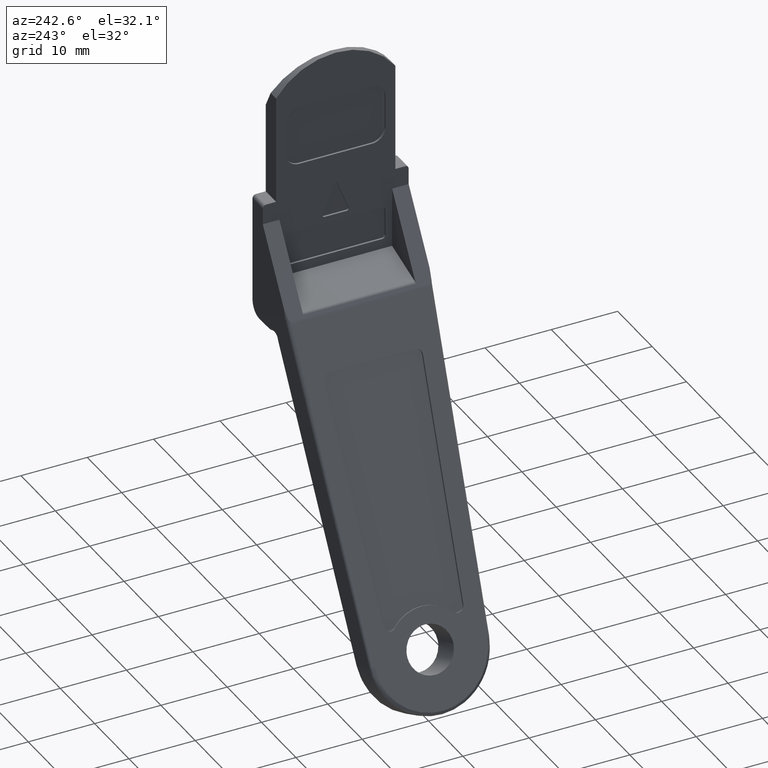
[diagram: clean part render]
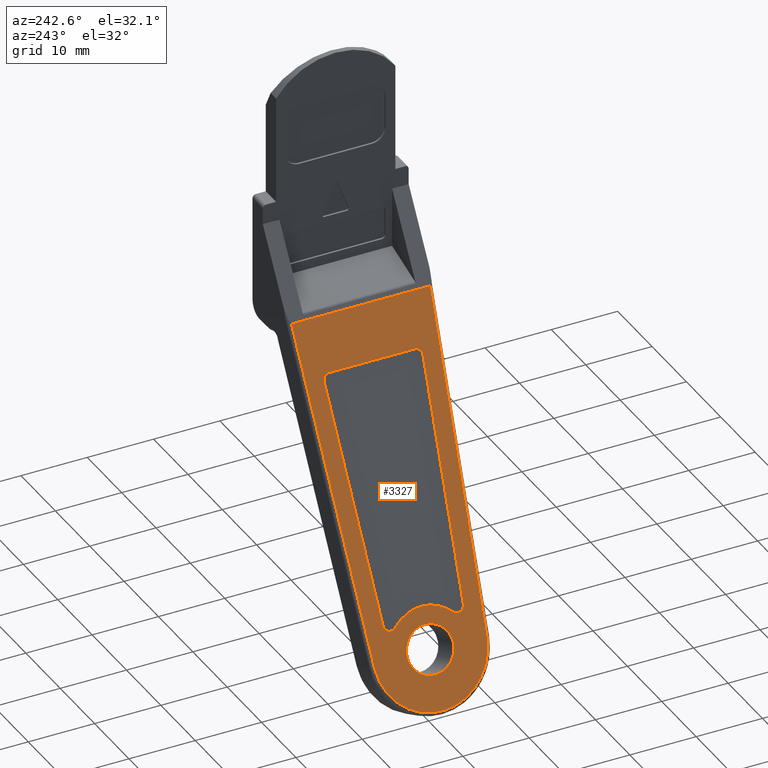
[diagram: same view with one face highlighted and labeled with its STEP entity id]
A machine part, auxiliary view. The second image highlights one B-rep face of the part: STEP entity #3327.
In plain terms, the highlighted face is a freeform B-spline surface patch.
Its self-contained STEP definition (entity closure, byte-faithful):
#62=CARTESIAN_POINT('',(-30.288373101777442,3.472931748367618,-67.683323056339034));
#63=VERTEX_POINT('',#62);
#64=CARTESIAN_POINT('',(-28.992814862727649,0.0,-64.904989406786413));
#65=VERTEX_POINT('',#64);
#66=CARTESIAN_POINT('',(-30.288373101777438,3.472931748367617,-67.683323056339034));
#67=CARTESIAN_POINT('',(-28.992814862727652,3.089445100213793,-64.904989406786413));
#68=CARTESIAN_POINT('',(-28.992814862727649,0.0,-64.904989406786413));
#76=(BOUNDED_CURVE()B_SPLINE_CURVE(2,(#66,#67,#68),.UNSPECIFIED.,.F.,.U.)B_SPLINE_CURVE_WITH_KNOTS((3,3),(0.771473928987601,1.0),.UNSPECIFIED.)CURVE()GEOMETRIC_REPRESENTATION_ITEM()RATIONAL_B_SPLINE_CURVE((0.954005430241922,0.732265053913548,1.0))REPRESENTATION_ITEM(''));
#77=EDGE_CURVE('',#63,#65,#76,.T.);
#118=CARTESIAN_POINT('',(-30.484886737768800,-3.499866730721168,-68.104747914762385));
#119=VERTEX_POINT('',#118);
#125=CARTESIAN_POINT('',(-28.992814862727649,0.0,-64.904989406786413));
#126=CARTESIAN_POINT('',(-28.992814862727649,-3.500000000000000,-64.904989406786413));
#127=CARTESIAN_POINT('',(-30.471978761333549,-3.500000000000000,-68.077066669568794));
#128=CARTESIAN_POINT('',(-30.478432872510666,-3.500000000000000,-68.090907555853050));
#129=CARTESIAN_POINT('',(-30.484886737768804,-3.499866730721168,-68.104747914762385));
#137=(BOUNDED_CURVE()B_SPLINE_CURVE(2,(#125,#126,#127,#128,#129),.UNSPECIFIED.,.F.,.U.)B_SPLINE_CURVE_WITH_KNOTS((3,2,3),(0.0,0.250000000000000,0.251539894374564),.UNSPECIFIED.)CURVE()GEOMETRIC_REPRESENTATION_ITEM()RATIONAL_B_SPLINE_CURVE((1.0,0.707106781186547,1.0,0.998195901520004,0.996414028008813))REPRESENTATION_ITEM(''));
#138=EDGE_CURVE('',#65,#119,#137,.T.);
#165=CARTESIAN_POINT('',(-31.951142659939450,0.0,-71.249143932351188));
#166=VERTEX_POINT('',#165);
#167=CARTESIAN_POINT('',(-31.951142659939450,0.0,-71.249143932351188));
#168=CARTESIAN_POINT('',(-31.951142659939453,3.500000000000000,-71.249143932351188));
#169=CARTESIAN_POINT('',(-30.471978761333549,3.500000000000000,-68.077066669568794));
#170=CARTESIAN_POINT('',(-30.379819561746341,3.500000000000000,-67.879430625420923));
#171=CARTESIAN_POINT('',(-30.288373101777434,3.472931748367618,-67.683323056339034));
#179=(BOUNDED_CURVE()B_SPLINE_CURVE(2,(#167,#168,#169,#170,#171),.UNSPECIFIED.,.F.,.U.)B_SPLINE_CURVE_WITH_KNOTS((3,2,3),(0.500000000000000,0.750000000000000,0.771473928987602),.UNSPECIFIED.)CURVE()GEOMETRIC_REPRESENTATION_ITEM()RATIONAL_B_SPLINE_CURVE((1.0,0.707106781186547,1.0,0.974841727272999,0.954005430241920))REPRESENTATION_ITEM(''));
#180=EDGE_CURVE('',#166,#63,#179,.T.);
#182=CARTESIAN_POINT('',(-30.484886737768807,-3.499866730721168,-68.104747914762385));
#183=CARTESIAN_POINT('',(-31.951142659939457,-3.469589236302817,-71.249143932351203));
#184=CARTESIAN_POINT('',(-31.951142659939450,0.0,-71.249143932351188));
#192=(BOUNDED_CURVE()B_SPLINE_CURVE(2,(#182,#183,#184),.UNSPECIFIED.,.F.,.U.)B_SPLINE_CURVE_WITH_KNOTS((3,3),(0.251539894374564,0.500000000000000),.UNSPECIFIED.)CURVE()GEOMETRIC_REPRESENTATION_ITEM()RATIONAL_B_SPLINE_CURVE((0.996414028008813,0.708910879666543,1.0))REPRESENTATION_ITEM(''));
#193=EDGE_CURVE('',#119,#166,#192,.T.);
#1164=CARTESIAN_POINT('',(-30.619280410718499,8.492850882010821,-68.392956080623406));
#1165=VERTEX_POINT('',#1164);
#1179=CARTESIAN_POINT('',(-10.302602000000000,10.465774658667600,-24.823697999999901));
#1180=VERTEX_POINT('',#1179);
#1181=CARTESIAN_POINT('',(-10.302602000000000,10.465774658667600,-24.823697999999901));
#1182=CARTESIAN_POINT('',(-30.619280410718499,8.492850882010821,-68.392956080623406));
#1183=QUASI_UNIFORM_CURVE('',1,(#1181,#1182),.UNSPECIFIED.,.F.,.U.);
#1184=EDGE_CURVE('',#1180,#1165,#1183,.T.);
#1236=CARTESIAN_POINT('',(-30.619280410038549,-8.492850882076851,-68.392956079165302));
#1237=VERTEX_POINT('',#1236);
#1251=CARTESIAN_POINT('',(-30.619280410718488,8.492850882010824,-68.392956080623406));
#1252=CARTESIAN_POINT('',(-34.064233943988839,8.158316337059119,-75.780682879883386));
#1253=CARTESIAN_POINT('',(-34.064233943662273,-8.050983E-010,-75.780682879183061));
#1254=CARTESIAN_POINT('',(-34.064233943335701,-8.158316338669316,-75.780682878482722));
#1255=CARTESIAN_POINT('',(-30.619280410038570,-8.492850882076851,-68.392956079165302));
#1263=(BOUNDED_CURVE()B_SPLINE_CURVE(2,(#1251,#1252,#1253,#1254,#1255),.UNSPECIFIED.,.F.,.U.)B_SPLINE_CURVE_WITH_KNOTS((3,2,3),(0.0,0.500000000000000,1.0),.UNSPECIFIED.)CURVE()GEOMETRIC_REPRESENTATION_ITEM()RATIONAL_B_SPLINE_CURVE((1.0,0.721458710216014,1.0,0.721458710216014,1.0))REPRESENTATION_ITEM(''));
#1264=EDGE_CURVE('',#1165,#1237,#1263,.T.);
#1335=CARTESIAN_POINT('',(-10.302602000000000,-10.465774658198541,-24.823697999999901));
#1336=VERTEX_POINT('',#1335);
#1344=CARTESIAN_POINT('',(-30.619280410038549,-8.492850882076851,-68.392956079165302));
#1345=CARTESIAN_POINT('',(-10.302602000000000,-10.465774658198541,-24.823697999999901));
#1346=QUASI_UNIFORM_CURVE('',1,(#1344,#1345),.UNSPECIFIED.,.F.,.U.);
#1347=EDGE_CURVE('',#1237,#1336,#1346,.T.);
#1481=CARTESIAN_POINT('',(-14.007196397664440,-7.453796040319440,-32.768226437813752));
#1482=VERTEX_POINT('',#1481);
#1483=CARTESIAN_POINT('',(-13.567248342203021,-6.454637117253899,-31.824755164555398));
#1484=VERTEX_POINT('',#1483);
#1485=CARTESIAN_POINT('',(-14.007196397664440,-7.453796040319440,-32.768226437813752));
#1486=CARTESIAN_POINT('',(-13.827194560662466,-7.471275792570899,-32.382211637025314));
#1487=CARTESIAN_POINT('',(-13.697221451432720,-7.176095863217485,-32.103483400790388));
#1488=CARTESIAN_POINT('',(-13.567248342202982,-6.880915933864070,-31.824755164555462));
#1489=CARTESIAN_POINT('',(-13.567248342202980,-6.454637117253899,-31.824755164555459));
#1497=(BOUNDED_CURVE()B_SPLINE_CURVE(2,(#1485,#1486,#1487,#1488,#1489),.UNSPECIFIED.,.F.,.U.)B_SPLINE_CURVE_WITH_KNOTS((3,2,3),(0.0,0.500000000000000,1.0),.UNSPECIFIED.)CURVE()GEOMETRIC_REPRESENTATION_ITEM()RATIONAL_B_SPLINE_CURVE((1.0,0.919906902772662,1.0,0.919906902772662,1.0))REPRESENTATION_ITEM(''));
#1498=EDGE_CURVE('',#1482,#1484,#1497,.T.);
#1519=CARTESIAN_POINT('',(-28.441975105743300,-6.052055172494590,-63.723710108762290));
#1520=VERTEX_POINT('',#1519);
#1521=CARTESIAN_POINT('',(-28.441975105743300,-6.052055172494590,-63.723710108762290));
#1522=CARTESIAN_POINT('',(-14.007196397664440,-7.453796040319440,-32.768226437813752));
#1523=QUASI_UNIFORM_CURVE('',1,(#1521,#1522),.UNSPECIFIED.,.F.,.U.);
#1524=EDGE_CURVE('',#1520,#1482,#1523,.T.);
#1554=CARTESIAN_POINT('',(-28.717121658875751,-4.331053924448885,-64.313763804601706));
#1555=VERTEX_POINT('',#1554);
#1556=CARTESIAN_POINT('',(-28.717121658875939,-4.331053924448902,-64.313763804601592));
#1557=CARTESIAN_POINT('',(-28.918764757641306,-4.788494815645153,-64.746188831600591));
#1558=CARTESIAN_POINT('',(-28.819924995500319,-5.406723000096585,-64.534226274617055));
#1559=CARTESIAN_POINT('',(-28.721085233359332,-6.024951184548018,-64.322263717633518));
#1560=CARTESIAN_POINT('',(-28.441975105743431,-6.052055172494589,-63.723710108762241));
#1568=(BOUNDED_CURVE()B_SPLINE_CURVE(2,(#1556,#1557,#1558,#1559,#1560),.UNSPECIFIED.,.F.,.U.)B_SPLINE_CURVE_WITH_KNOTS((3,2,3),(0.0,0.500000000000000,1.0),.UNSPECIFIED.)CURVE()GEOMETRIC_REPRESENTATION_ITEM()RATIONAL_B_SPLINE_CURVE((1.0,0.834230755395178,1.0,0.834230755395178,1.0))REPRESENTATION_ITEM(''));
#1569=EDGE_CURVE('',#1555,#1520,#1568,.T.);
#1595=CARTESIAN_POINT('',(-28.717121658875751,4.331053924448885,-64.313763804601706));
#1596=VERTEX_POINT('',#1595);
#1597=CARTESIAN_POINT('',(-28.717121658875740,-4.331053924448900,-64.313763804601692));
#1598=CARTESIAN_POINT('',(-27.936269071517334,-2.559637468139943,-62.639220003012916));
#1599=CARTESIAN_POINT('',(-27.936269071517341,0.0,-62.639220003012923));
#1600=CARTESIAN_POINT('',(-27.936269071517334,2.559637468139941,-62.639220003012916));
#1601=CARTESIAN_POINT('',(-28.717121658875740,4.331053924448899,-64.313763804601692));
#1609=(BOUNDED_CURVE()B_SPLINE_CURVE(2,(#1597,#1598,#1599,#1600,#1601),.UNSPECIFIED.,.F.,.U.)B_SPLINE_CURVE_WITH_KNOTS((3,2,3),(0.0,0.500000000000000,1.0),.UNSPECIFIED.)CURVE()GEOMETRIC_REPRESENTATION_ITEM()RATIONAL_B_SPLINE_CURVE((1.0,0.919798227409188,1.0,0.919798227409188,1.0))REPRESENTATION_ITEM(''));
#1610=EDGE_CURVE('',#1555,#1596,#1609,.T.);
#1640=CARTESIAN_POINT('',(-28.441975105743300,6.052055172494600,-63.723710108762290));
#1641=VERTEX_POINT('',#1640);
#1642=CARTESIAN_POINT('',(-28.441975105743431,6.052055172494589,-63.723710108762241));
#1643=CARTESIAN_POINT('',(-28.721085233359332,6.024951184548018,-64.322263717633518));
#1644=CARTESIAN_POINT('',(-28.819924995500319,5.406723000096586,-64.534226274617055));
#1645=CARTESIAN_POINT('',(-28.918764757641306,4.788494815645154,-64.746188831600591));
#1646=CARTESIAN_POINT('',(-28.717121658875939,4.331053924448902,-64.313763804601592));
#1654=(BOUNDED_CURVE()B_SPLINE_CURVE(2,(#1642,#1643,#1644,#1645,#1646),.UNSPECIFIED.,.F.,.U.)B_SPLINE_CURVE_WITH_KNOTS((3,2,3),(0.0,0.500000000000000,1.0),.UNSPECIFIED.)CURVE()GEOMETRIC_REPRESENTATION_ITEM()RATIONAL_B_SPLINE_CURVE((1.0,0.834230755395178,1.0,0.834230755395178,1.0))REPRESENTATION_ITEM(''));
#1655=EDGE_CURVE('',#1641,#1596,#1654,.T.);
#1672=CARTESIAN_POINT('',(-14.007196204666400,7.453796043337540,-32.768226413850698));
#1673=VERTEX_POINT('',#1672);
#1674=CARTESIAN_POINT('',(-14.007196204666400,7.453796043337540,-32.768226413850698));
#1675=CARTESIAN_POINT('',(-28.441975105743300,6.052055172494600,-63.723710108762290));
#1676=QUASI_UNIFORM_CURVE('',1,(#1674,#1675),.UNSPECIFIED.,.F.,.U.);
#1677=EDGE_CURVE('',#1673,#1641,#1676,.T.);
#1703=CARTESIAN_POINT('',(-13.567248342203021,6.454637116033299,-31.824755164555398));
#1704=VERTEX_POINT('',#1703);
#1705=CARTESIAN_POINT('',(-13.567248342202980,6.454637116033299,-31.824755164555459));
#1706=CARTESIAN_POINT('',(-13.567248342202975,6.880915902105231,-31.824755164555462));
#1707=CARTESIAN_POINT('',(-13.697221435673979,7.176095826207451,-32.103483366995661));
#1708=CARTESIAN_POINT('',(-13.827194529144993,7.471275750309670,-32.382211569435867));
#1709=CARTESIAN_POINT('',(-14.007196204666450,7.453796043337531,-32.768226413850677));
#1717=(BOUNDED_CURVE()B_SPLINE_CURVE(2,(#1705,#1706,#1707,#1708,#1709),.UNSPECIFIED.,.F.,.U.)B_SPLINE_CURVE_WITH_KNOTS((3,2,3),(0.0,0.500000000000000,1.0),.UNSPECIFIED.)CURVE()GEOMETRIC_REPRESENTATION_ITEM()RATIONAL_B_SPLINE_CURVE((1.0,0.919906912906393,1.0,0.919906912906393,1.0))REPRESENTATION_ITEM(''));
#1718=EDGE_CURVE('',#1704,#1673,#1717,.T.);
#1735=CARTESIAN_POINT('',(-13.567248342203021,-6.454637117253899,-31.824755164555398));
#1736=CARTESIAN_POINT('',(-13.567248342203021,6.454637116033299,-31.824755164555398));
#1737=QUASI_UNIFORM_CURVE('',1,(#1735,#1736),.UNSPECIFIED.,.F.,.U.);
#1738=EDGE_CURVE('',#1484,#1704,#1737,.T.);
#3147=CARTESIAN_POINT('',(-10.302602000000000,-10.465774658198541,-24.823697999999901));
#3148=CARTESIAN_POINT('',(-10.302602000000000,10.465774658667600,-24.823697999999901));
#3149=QUASI_UNIFORM_CURVE('',1,(#3147,#3148),.UNSPECIFIED.,.F.,.U.);
#3150=EDGE_CURVE('',#1336,#1180,#3149,.T.);
#3300=CARTESIAN_POINT('',(-35.251128751536712,-11.511305506006600,-78.325987045219875));
#3301=CARTESIAN_POINT('',(-9.115707829462188,-11.511305506006600,-22.278395200735780));
#3302=CARTESIAN_POINT('',(-35.251128751536712,11.511306067903559,-78.325987045219875));
#3303=CARTESIAN_POINT('',(-9.115707829462188,11.511306067903559,-22.278395200735780));
#3304=B_SPLINE_SURFACE_WITH_KNOTS('',1,1,((#3300,#3302),(#3301,#3303)),.UNSPECIFIED.,.F.,.F.,.U.,(2,2),(2,2),(0.0,61.841675093256427),(0.0,23.022611573910162),.UNSPECIFIED.);
#3305=ORIENTED_EDGE('',*,*,#3150,.T.);
#3306=ORIENTED_EDGE('',*,*,#1184,.T.);
#3307=ORIENTED_EDGE('',*,*,#1264,.T.);
#3308=ORIENTED_EDGE('',*,*,#1347,.T.);
#3309=EDGE_LOOP('',(#3305,#3306,#3307,#3308));
#3310=FACE_OUTER_BOUND('',#3309,.T.);
#3311=ORIENTED_EDGE('',*,*,#1738,.F.);
#3312=ORIENTED_EDGE('',*,*,#1498,.F.);
#3313=ORIENTED_EDGE('',*,*,#1524,.F.);
#3314=ORIENTED_EDGE('',*,*,#1569,.F.);
#3315=ORIENTED_EDGE('',*,*,#1610,.T.);
#3316=ORIENTED_EDGE('',*,*,#1655,.F.);
#3317=ORIENTED_EDGE('',*,*,#1677,.F.);
#3318=ORIENTED_EDGE('',*,*,#1718,.F.);
#3319=EDGE_LOOP('',(#3311,#3312,#3313,#3314,#3315,#3316,#3317,#3318));
#3320=FACE_BOUND('',#3319,.T.);
#3321=ORIENTED_EDGE('',*,*,#138,.T.);
#3322=ORIENTED_EDGE('',*,*,#193,.T.);
#3323=ORIENTED_EDGE('',*,*,#180,.T.);
#3324=ORIENTED_EDGE('',*,*,#77,.T.);
#3325=EDGE_LOOP('',(#3321,#3322,#3323,#3324));
#3326=FACE_BOUND('',#3325,.T.);
#3327=ADVANCED_FACE('',(#3310,#3320,#3326),#3304,.T.);